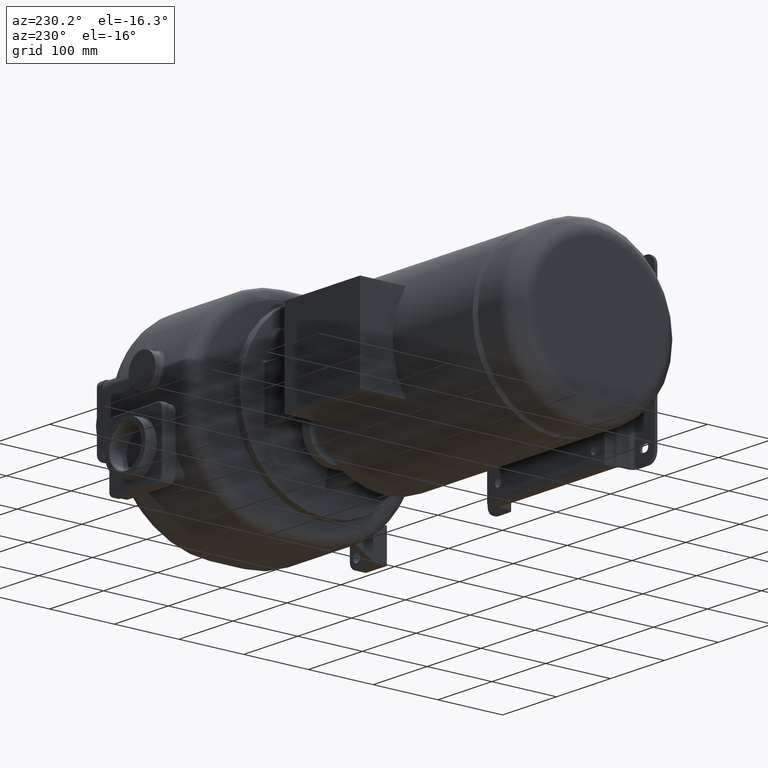
[diagram: clean part render]
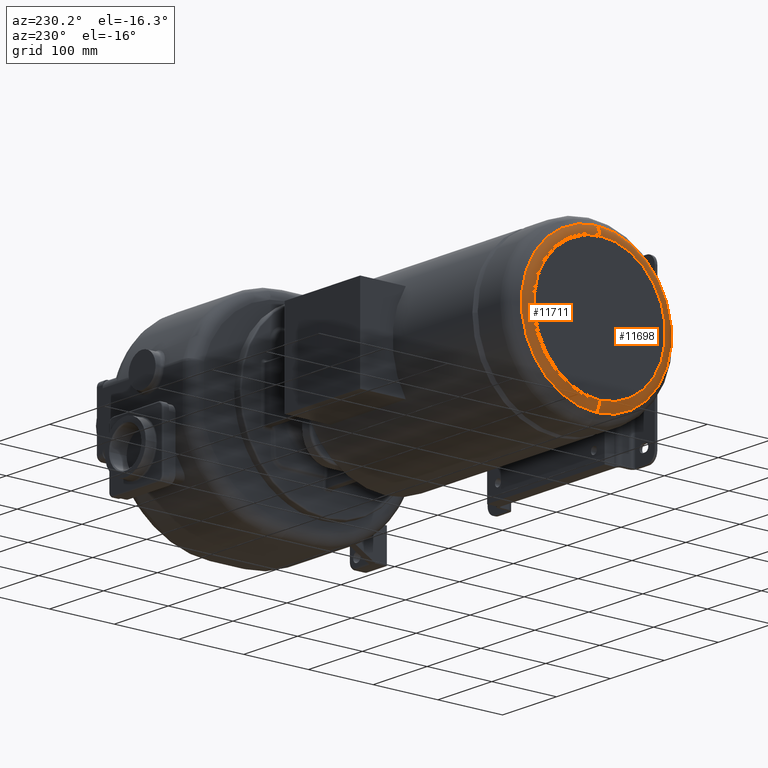
[diagram: same view with one multi-face feature highlighted, each face labeled with its STEP entity id]
A machine part, auxiliary view. The highlighted faces form ONE feature: a constant-radius fillet chain: 2 tangent blend faces with common blend radius 20 mm. The faces share edges in the B-rep.
Their STEP definitions:
[1] entity #11698 (Torus):
#1=CARTESIAN_POINT('',(0.E0,8.171241461241E-14,-1.065814103640E-13));
#2=DIRECTION('',(-1.E0,0.E0,0.E0));
#3=DIRECTION('',(0.E0,1.267776107186E-9,-1.E0));
#4=AXIS2_PLACEMENT_3D('',#1,#2,#3);
#11=CARTESIAN_POINT('',(2.E1,1.289529134585E-7,-1.017157517249E2));
#12=DIRECTION('',(0.E0,-1.E0,-1.267776423772E-9));
#13=DIRECTION('',(-1.E0,0.E0,0.E0));
#14=AXIS2_PLACEMENT_3D('',#11,#12,#13);
#16=CARTESIAN_POINT('',(2.E1,-1.289528668291E-7,1.017157517249E2));
#17=DIRECTION('',(0.E0,1.E0,1.267776873065E-9));
#18=DIRECTION('',(-1.E0,0.E0,0.E0));
#19=AXIS2_PLACEMENT_3D('',#16,#17,#18);
#82=CARTESIAN_POINT('',(5.857862974212E0,8.171241461241E-14,
-1.065814103640E-13));
#83=DIRECTION('',(-1.E0,0.E0,0.E0));
#84=DIRECTION('',(0.E0,1.308201382186E-10,-1.E0));
#85=AXIS2_PLACEMENT_3D('',#82,#83,#84);
#10401=CARTESIAN_POINT('',(0.E0,1.289528814737E-7,-1.017157517249E2));
#10402=CARTESIAN_POINT('',(0.E0,-1.289530015307E-7,1.017157517249E2));
#10403=VERTEX_POINT('',#10401);
#10404=VERTEX_POINT('',#10402);
#10405=CARTESIAN_POINT('',(5.857862974212E0,1.515662636566E-8,
-1.158578859466E2));
#10406=CARTESIAN_POINT('',(5.857862974212E0,-1.515663148304E-8,
1.158578859466E2));
#10407=VERTEX_POINT('',#10405);
#10408=VERTEX_POINT('',#10406);
#11684=CARTESIAN_POINT('',(2.E1,8.171241461241E-14,-1.065814103640E-13));
#11685=DIRECTION('',(1.E0,0.E0,0.E0));
#11686=DIRECTION('',(0.E0,1.013318454708E-2,-9.999486579675E-1));
#11687=AXIS2_PLACEMENT_3D('',#11684,#11685,#11686);
#11688=TOROIDAL_SURFACE('',#11687,1.017157517249E2,2.E1);
#11689=ORIENTED_EDGE('',*,*,#11677,.T.);
#11691=ORIENTED_EDGE('',*,*,#11690,.T.);
#11693=ORIENTED_EDGE('',*,*,#11692,.F.);
#11695=ORIENTED_EDGE('',*,*,#11694,.F.);
#11696=EDGE_LOOP('',(#11689,#11691,#11693,#11695));
#11697=FACE_OUTER_BOUND('',#11696,.F.);
#11698=ADVANCED_FACE('',(#11697),#11688,.T.);
#5=CIRCLE('',#4,1.017157517249E2);
#15=CIRCLE('',#14,2.E1);
#20=CIRCLE('',#19,2.E1);
#86=CIRCLE('',#85,1.158578859466E2);
#11677=EDGE_CURVE('',#10403,#10404,#5,.T.);
#11690=EDGE_CURVE('',#10404,#10408,#20,.T.);
#11692=EDGE_CURVE('',#10407,#10408,#86,.T.);
#11694=EDGE_CURVE('',#10403,#10407,#15,.T.);
[2] entity #11711 (Torus):
#6=CARTESIAN_POINT('',(0.E0,1.065814103640E-14,9.947598300641E-14));
#7=DIRECTION('',(-1.E0,0.E0,0.E0));
#8=DIRECTION('',(0.E0,-1.267778262570E-9,1.E0));
#9=AXIS2_PLACEMENT_3D('',#6,#7,#8);
#11=CARTESIAN_POINT('',(2.E1,1.289529134585E-7,-1.017157517249E2));
#12=DIRECTION('',(0.E0,-1.E0,-1.267776423772E-9));
#13=DIRECTION('',(-1.E0,0.E0,0.E0));
#14=AXIS2_PLACEMENT_3D('',#11,#12,#13);
#16=CARTESIAN_POINT('',(2.E1,-1.289528668291E-7,1.017157517249E2));
#17=DIRECTION('',(0.E0,1.E0,1.267776873065E-9));
#18=DIRECTION('',(-1.E0,0.E0,0.E0));
#19=AXIS2_PLACEMENT_3D('',#16,#17,#18);
#30=CARTESIAN_POINT('',(5.857862974212E0,1.065814103640E-14,
9.947598300641E-14));
#31=DIRECTION('',(-1.E0,0.E0,0.E0));
#32=DIRECTION('',(0.E0,-1.308214533298E-10,1.E0));
#33=AXIS2_PLACEMENT_3D('',#30,#31,#32);
#10401=CARTESIAN_POINT('',(0.E0,1.289528814737E-7,-1.017157517249E2));
#10402=CARTESIAN_POINT('',(0.E0,-1.289530015307E-7,1.017157517249E2));
#10403=VERTEX_POINT('',#10401);
#10404=VERTEX_POINT('',#10402);
#10405=CARTESIAN_POINT('',(5.857862974212E0,1.515662636566E-8,
-1.158578859466E2));
#10406=CARTESIAN_POINT('',(5.857862974212E0,-1.515663148304E-8,
1.158578859466E2));
#10407=VERTEX_POINT('',#10405);
#10408=VERTEX_POINT('',#10406);
#11699=CARTESIAN_POINT('',(2.E1,1.065814103640E-14,9.947598300641E-14));
#11700=DIRECTION('',(1.E0,0.E0,0.E0));
#11701=DIRECTION('',(0.E0,-1.013318454708E-2,9.999486579675E-1));
#11702=AXIS2_PLACEMENT_3D('',#11699,#11700,#11701);
#11703=TOROIDAL_SURFACE('',#11702,1.017157517249E2,2.E1);
#11704=ORIENTED_EDGE('',*,*,#11679,.T.);
#11705=ORIENTED_EDGE('',*,*,#11694,.T.);
#11707=ORIENTED_EDGE('',*,*,#11706,.F.);
#11708=ORIENTED_EDGE('',*,*,#11690,.F.);
#11709=EDGE_LOOP('',(#11704,#11705,#11707,#11708));
#11710=FACE_OUTER_BOUND('',#11709,.F.);
#11711=ADVANCED_FACE('',(#11710),#11703,.T.);
#10=CIRCLE('',#9,1.017157517249E2);
#15=CIRCLE('',#14,2.E1);
#20=CIRCLE('',#19,2.E1);
#34=CIRCLE('',#33,1.158578859466E2);
#11679=EDGE_CURVE('',#10404,#10403,#10,.T.);
#11690=EDGE_CURVE('',#10404,#10408,#20,.T.);
#11694=EDGE_CURVE('',#10403,#10407,#15,.T.);
#11706=EDGE_CURVE('',#10408,#10407,#34,.T.);